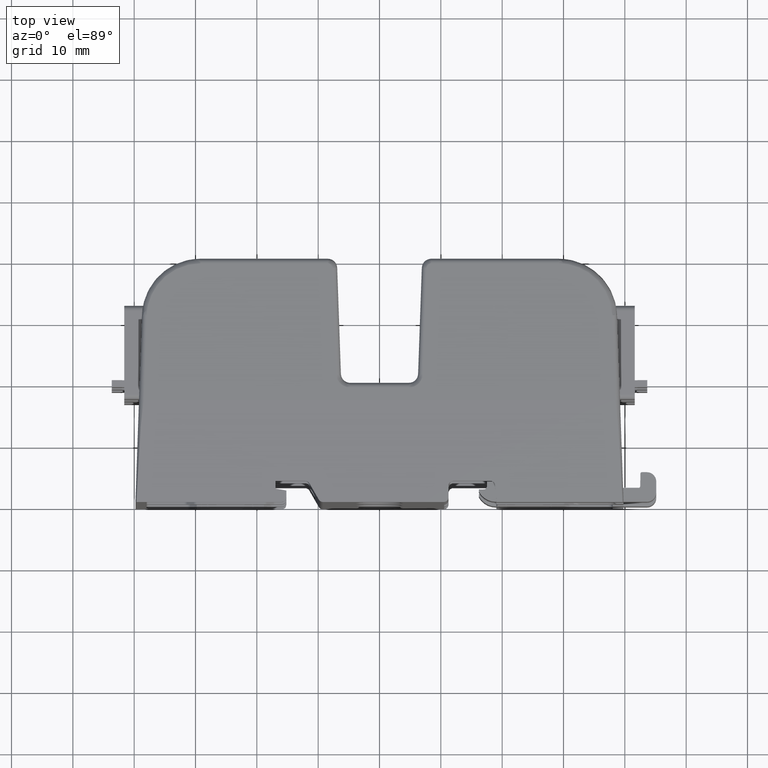
[diagram: clean part render]
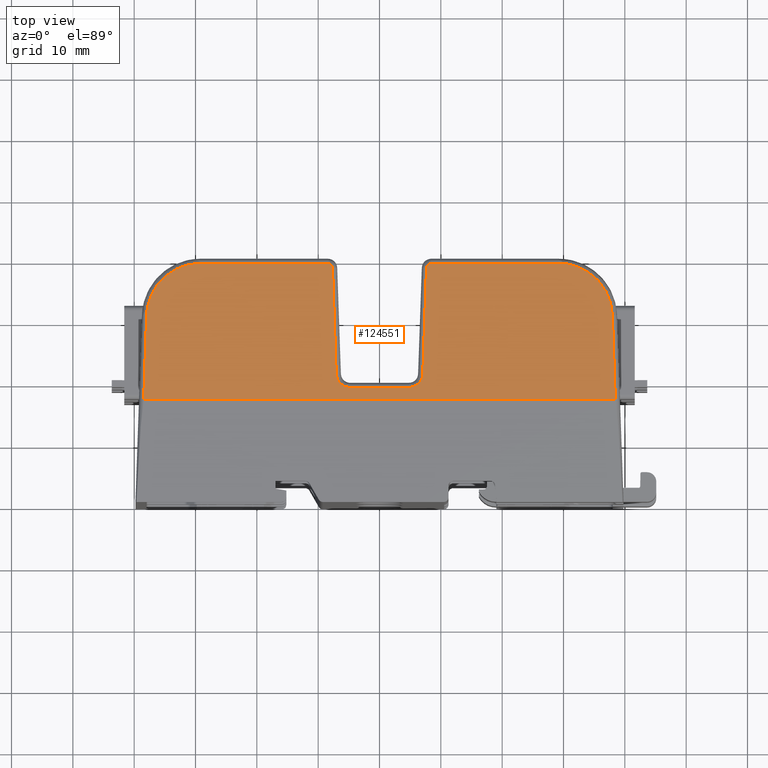
[diagram: same view with one face highlighted and labeled with its STEP entity id]
A machine part, top view. The second image highlights one B-rep face of the part: STEP entity #124551.
In plain terms, the highlighted planar face has unit normal (0, -0.0175, -0.9998).
Its self-contained STEP definition (entity closure, byte-faithful):
#179 = VECTOR ( 'NONE', #86601, 39.37007874015748900 ) ;
#1579 = CARTESIAN_POINT ( 'NONE',  ( -1.346367105068339900, 1.532523572193156700, 0.4687176792011885600 ) ) ;
#1840 = CARTESIAN_POINT ( 'NONE',  ( 0.3017914549627716500, 1.503570557094188000, 0.4692230559596084500 ) ) ;
#3571 = CARTESIAN_POINT ( 'NONE',  ( 1.494610302822825700, 1.199563898555475500, 0.4745295119230104100 ) ) ;
#3598 = CARTESIAN_POINT ( 'NONE',  ( 0.3017914549627716500, 1.503570557094188000, 0.4692230559596084500 ) ) ;
#3658 = LINE ( 'NONE', #97520, #179 ) ;
#4620 = CARTESIAN_POINT ( 'NONE',  ( 0.1880586735115753500, 0.7355235721931184800, 0.4826293659489739900 ) ) ;
#6291 = VERTEX_POINT ( 'NONE', #75295 ) ;
#8776 = LINE ( 'NONE', #106040, #122118 ) ;
#10596 = CARTESIAN_POINT ( 'NONE',  ( 1.494610302822825700, 1.199563898555475500, 0.4745295119230104100 ) ) ;
#11316 = EDGE_CURVE ( 'NONE', #61268, #54311, #63619, .T. ) ;
#11508 = AXIS2_PLACEMENT_3D ( 'NONE', #45219, #124401, #56595 ) ;
#12949 = ORIENTED_EDGE ( 'NONE', *, *, #123259, .T. ) ;
#12998 = ORIENTED_EDGE ( 'NONE', *, *, #100175, .T. ) ;
#13876 =( BOUNDED_CURVE ( )  B_SPLINE_CURVE ( 3, ( #90701, #35409, #69511, #1840 ),
 .UNSPECIFIED., .F., .F. ) 
 B_SPLINE_CURVE_WITH_KNOTS ( ( 4, 4 ),
 ( 3.141592653590012900, 4.677482395345038000 ),
 .UNSPECIFIED. ) 
 CURVE ( )  GEOMETRIC_REPRESENTATION_ITEM ( )  RATIONAL_B_SPLINE_CURVE ( ( 1.000000000000000000, 0.8128932002257639500, 0.8128932002257639500, 1.000000000000000000 ) ) 
 REPRESENTATION_ITEM ( '' )  );
#14063 = CARTESIAN_POINT ( 'NONE',  ( -0.3317731797733445800, 1.532523572193113200, 0.4687176792011891700 ) ) ;
#14092 = VERTEX_POINT ( 'NONE', #4620 ) ;
#18337 = DIRECTION ( 'NONE',  ( -0.03489418781261441300, 0.9992388003036509800, -0.01744177813808881600 ) ) ;
#18682 = CARTESIAN_POINT ( 'NONE',  ( -1.566499999999999800, 0.6570000000000000300, 0.4840000000000000400 ) ) ;
#21072 = LINE ( 'NONE', #122294, #107880 ) ;
#21789 = VERTEX_POINT ( 'NONE', #24666 ) ;
#24666 = CARTESIAN_POINT ( 'NONE',  ( 1.149820467501237600, 1.532523572193113200, 0.4687176792011891700 ) ) ;
#24686 = EDGE_CURVE ( 'NONE', #123220, #53047, #21072, .T. ) ;
#28528 = LINE ( 'NONE', #18682, #138266 ) ;
#29512 = CARTESIAN_POINT ( 'NONE',  ( -1.509834696245875700, 0.7635943124142426900, 0.4821393893558312800 ) ) ;
#30074 = DIRECTION ( 'NONE',  ( 1.000000000000000000, 0.0000000000000000000, 0.0000000000000000000 ) ) ;
#31496 = VERTEX_POINT ( 'NONE', #3571 ) ;
#32836 = CARTESIAN_POINT ( 'NONE',  ( -0.1880586735115753500, 0.7355235721931184800, 0.4826293659489739900 ) ) ;
#33281 = CARTESIAN_POINT ( 'NONE',  ( 1.346367105068340100, 1.532523572193156700, 0.4687176792011883400 ) ) ;
#35409 = CARTESIAN_POINT ( 'NONE',  ( 0.3146821678109840100, 1.532523572193113200, 0.4687176792011892300 ) ) ;
#35567 =( BOUNDED_CURVE ( )  B_SPLINE_CURVE ( 3, ( #92909, #117721, #140331, #72542 ),
 .UNSPECIFIED., .F., .F. ) 
 B_SPLINE_CURVE_WITH_KNOTS ( ( 4, 4 ),
 ( 1.605702911834779000, 3.141592653589793100 ),
 .UNSPECIFIED. ) 
 CURVE ( )  GEOMETRIC_REPRESENTATION_ITEM ( )  RATIONAL_B_SPLINE_CURVE ( ( 1.000000000000000000, 0.8128932002257665000, 0.8128932002257665000, 1.000000000000000000 ) ) 
 REPRESENTATION_ITEM ( '' )  );
#37399 = VERTEX_POINT ( 'NONE', #68287 ) ;
#39180 = EDGE_CURVE ( 'NONE', #145947, #31496, #53044, .T. ) ;
#42849 =( BOUNDED_CURVE ( )  B_SPLINE_CURVE ( 3, ( #138181, #59020, #81789, #14063 ),
 .UNSPECIFIED., .F., .F. ) 
 B_SPLINE_CURVE_WITH_KNOTS ( ( 4, 4 ),
 ( 1.605702911834557400, 3.141592653589575500 ),
 .UNSPECIFIED. ) 
 CURVE ( )  GEOMETRIC_REPRESENTATION_ITEM ( )  RATIONAL_B_SPLINE_CURVE ( ( 1.000000000000000000, 0.8128932002257656100, 0.8128932002257656100, 1.000000000000000000 ) ) 
 REPRESENTATION_ITEM ( '' )  );
#45219 = CARTESIAN_POINT ( 'NONE',  ( 1.543557054443922100, 0.6570000000000000300, 0.4840000000000000400 ) ) ;
#49710 = ORIENTED_EDGE ( 'NONE', *, *, #56158, .T. ) ;
#49965 = ORIENTED_EDGE ( 'NONE', *, *, #70586, .T. ) ;
#52241 = DIRECTION ( 'NONE',  ( -0.03489418781261441300, -0.9992388003036509800, 0.01744177813808881600 ) ) ;
#53044 = LINE ( 'NONE', #86114, #113387 ) ;
#53047 = VERTEX_POINT ( 'NONE', #128755 ) ;
#53424 = LINE ( 'NONE', #142136, #83538 ) ;
#54311 = VERTEX_POINT ( 'NONE', #114511 ) ;
#54425 = DIRECTION ( 'NONE',  ( -0.03489418781261068700, -0.9992388003036509800, 0.01744177813808881600 ) ) ;
#54978 = ORIENTED_EDGE ( 'NONE', *, *, #79245, .T. ) ;
#55602 = CARTESIAN_POINT ( 'NONE',  ( -0.2780038479432934700, 0.8223826174898936100, 0.4811132356737162800 ) ) ;
#55955 = CARTESIAN_POINT ( 'NONE',  ( -1.494610302822825500, 1.199563898555475500, 0.4745295119230104100 ) ) ;
#56091 = PLANE ( 'NONE',  #11508 ) ;
#56158 = EDGE_CURVE ( 'NONE', #66171, #6291, #3658, .T. ) ;
#56595 = DIRECTION ( 'NONE',  ( 0.0000000000000000000, 0.9998476951563912700, -0.01745240643727785300 ) ) ;
#58863 = CARTESIAN_POINT ( 'NONE',  ( -1.487750924093162300, 1.395990805221561000, 0.4711008675135060500 ) ) ;
#59020 = CARTESIAN_POINT ( 'NONE',  ( -0.3023879226783943200, 1.520651157673844400, 0.4689249129674776300 ) ) ;
#61268 = VERTEX_POINT ( 'NONE', #55955 ) ;
#61355 = ORIENTED_EDGE ( 'NONE', *, *, #99242, .T. ) ;
#62609 = ORIENTED_EDGE ( 'NONE', *, *, #39180, .T. ) ;
#63619 = LINE ( 'NONE', #29512, #90228 ) ;
#66171 = VERTEX_POINT ( 'NONE', #141403 ) ;
#66240 = ORIENTED_EDGE ( 'NONE', *, *, #81812, .T. ) ;
#68121 = VERTEX_POINT ( 'NONE', #72999 ) ;
#68287 = CARTESIAN_POINT ( 'NONE',  ( 0.3317731797733445800, 1.532523572193113200, 0.4687176792011891700 ) ) ;
#69511 = CARTESIAN_POINT ( 'NONE',  ( 0.3023879226783942600, 1.520651157673844800, 0.4689249129674777400 ) ) ;
#70257 = ORIENTED_EDGE ( 'NONE', *, *, #125047, .T. ) ;
#70586 = EDGE_CURVE ( 'NONE', #37399, #123220, #13876, .T. ) ;
#72542 = CARTESIAN_POINT ( 'NONE',  ( 0.1880586735115753500, 0.7355235721931184800, 0.4826293659489739900 ) ) ;
#72999 = CARTESIAN_POINT ( 'NONE',  ( -0.1880586735115753500, 0.7355235721931184800, 0.4826293659489739900 ) ) ;
#75295 = CARTESIAN_POINT ( 'NONE',  ( -0.3017914549627716000, 1.503570557094188000, 0.4692230559596084500 ) ) ;
#78299 = CARTESIAN_POINT ( 'NONE',  ( 1.487750924093162600, 1.395990805221560600, 0.4711008675135062200 ) ) ;
#79245 = EDGE_CURVE ( 'NONE', #91045, #61268, #126276, .T. ) ;
#81789 = CARTESIAN_POINT ( 'NONE',  ( -0.3146821678109842400, 1.532523572193113000, 0.4687176792011889000 ) ) ;
#81812 = EDGE_CURVE ( 'NONE', #14092, #68121, #53424, .T. ) ;
#81934 = EDGE_LOOP ( 'NONE', ( #61355, #62609, #70257, #137683, #49965, #140401, #138802, #66240, #12998, #49710, #141761, #12949, #54978, #130295 ) ) ;
#83538 = VECTOR ( 'NONE', #85746, 39.37007874015748100 ) ;
#85746 = DIRECTION ( 'NONE',  ( -1.000000000000000000, 0.0000000000000000000, 0.0000000000000000000 ) ) ;
#86114 = CARTESIAN_POINT ( 'NONE',  ( 1.513593579792509700, 0.6559539711118668200, 0.4840182585021591300 ) ) ;
#86601 = DIRECTION ( 'NONE',  ( -0.03489418781261068700, 0.9992388003036509800, -0.01744177813808881600 ) ) ;
#90228 = VECTOR ( 'NONE', #52241, 39.37007874015748900 ) ;
#90701 = CARTESIAN_POINT ( 'NONE',  ( 0.3317731797733445800, 1.532523572193113200, 0.4687176792011891700 ) ) ;
#91045 = VERTEX_POINT ( 'NONE', #140881 ) ;
#92909 = CARTESIAN_POINT ( 'NONE',  ( 0.2780038479432939700, 0.8223826174898937200, 0.4811132356737162800 ) ) ;
#97520 = CARTESIAN_POINT ( 'NONE',  ( -0.2700176512300886400, 0.5936878656433487400, 0.4851051174159390400 ) ) ;
#97884 = VECTOR ( 'NONE', #110739, 39.37007874015748100 ) ;
#99242 = EDGE_CURVE ( 'NONE', #54311, #145947, #28528, .T. ) ;
#99296 = CARTESIAN_POINT ( 'NONE',  ( 1.543557054443922100, 1.532523572193113200, 0.4687176792011891700 ) ) ;
#100175 = EDGE_CURVE ( 'NONE', #68121, #66171, #138876, .T. ) ;
#101485 = LINE ( 'NONE', #99296, #97884 ) ;
#106040 = CARTESIAN_POINT ( 'NONE',  ( 1.543557054443922100, 1.532523572193113200, 0.4687176792011891700 ) ) ;
#106595 = CARTESIAN_POINT ( 'NONE',  ( 1.513557051658825900, 0.6570000000000000300, 0.4840000000000000400 ) ) ;
#106987 = VERTEX_POINT ( 'NONE', #139055 ) ;
#107880 = VECTOR ( 'NONE', #54425, 39.37007874015748900 ) ;
#110739 = DIRECTION ( 'NONE',  ( -1.000000000000000000, 0.0000000000000000000, 0.0000000000000000000 ) ) ;
#112594 = CARTESIAN_POINT ( 'NONE',  ( 1.149820467501237600, 1.532523572193113200, 0.4687176792011891700 ) ) ;
#113387 = VECTOR ( 'NONE', #18337, 39.37007874015748900 ) ;
#114511 = CARTESIAN_POINT ( 'NONE',  ( -1.513557051658824800, 0.6570000000000000300, 0.4840000000000000400 ) ) ;
#115395 = CARTESIAN_POINT ( 'NONE',  ( -1.149820467501237300, 1.532523572193113200, 0.4687176792011891700 ) ) ;
#117453 = DIRECTION ( 'NONE',  ( -1.000000000000000000, 0.0000000000000000000, 0.0000000000000000000 ) ) ;
#117721 = CARTESIAN_POINT ( 'NONE',  ( 0.2762144447964257600, 0.7711408157509240800, 0.4820076646501086400 ) ) ;
#122118 = VECTOR ( 'NONE', #117453, 39.37007874015748100 ) ;
#122241 = EDGE_CURVE ( 'NONE', #21789, #37399, #101485, .T. ) ;
#122294 = CARTESIAN_POINT ( 'NONE',  ( 0.2737765347767217000, 0.7013282069457129600, 0.4832262482696113600 ) ) ;
#122952 = CARTESIAN_POINT ( 'NONE',  ( -0.2393317093986563300, 0.7355235721931185900, 0.4826293659489741000 ) ) ;
#123220 = VERTEX_POINT ( 'NONE', #3598 ) ;
#123259 = EDGE_CURVE ( 'NONE', #106987, #91045, #8776, .T. ) ;
#123440 = CARTESIAN_POINT ( 'NONE',  ( -0.2762144447964256500, 0.7711408157509237500, 0.4820076646501086400 ) ) ;
#124401 = DIRECTION ( 'NONE',  ( 0.0000000000000000000, -0.01745240643727785600, -0.9998476951563913800 ) ) ;
#124551 = ADVANCED_FACE ( 'NONE', ( #124673 ), #56091, .F. ) ;
#124673 = FACE_OUTER_BOUND ( 'NONE', #81934, .T. ) ;
#125047 = EDGE_CURVE ( 'NONE', #31496, #21789, #142197, .T. ) ;
#126276 =( BOUNDED_CURVE ( )  B_SPLINE_CURVE ( 3, ( #115395, #1579, #58863, #138008 ),
 .UNSPECIFIED., .F., .F. ) 
 B_SPLINE_CURVE_WITH_KNOTS ( ( 4, 4 ),
 ( 0.0000000000000000000, 1.535889741755230900 ),
 .UNSPECIFIED. ) 
 CURVE ( )  GEOMETRIC_REPRESENTATION_ITEM ( )  RATIONAL_B_SPLINE_CURVE ( ( 1.000000000000000000, 0.8128932002257163200, 0.8128932002257163200, 1.000000000000000000 ) ) 
 REPRESENTATION_ITEM ( '' )  );
#128755 = CARTESIAN_POINT ( 'NONE',  ( 0.2780038479432939700, 0.8223826174898937200, 0.4811132356737162800 ) ) ;
#130295 = ORIENTED_EDGE ( 'NONE', *, *, #11316, .T. ) ;
#137683 = ORIENTED_EDGE ( 'NONE', *, *, #122241, .T. ) ;
#138008 = CARTESIAN_POINT ( 'NONE',  ( -1.494610302822825500, 1.199563898555475500, 0.4745295119230104100 ) ) ;
#138181 = CARTESIAN_POINT ( 'NONE',  ( -0.3017914549627716000, 1.503570557094188000, 0.4692230559596084500 ) ) ;
#138266 = VECTOR ( 'NONE', #30074, 39.37007874015748100 ) ;
#138802 = ORIENTED_EDGE ( 'NONE', *, *, #142937, .T. ) ;
#138876 =( BOUNDED_CURVE ( )  B_SPLINE_CURVE ( 3, ( #32836, #122952, #123440, #55602 ),
 .UNSPECIFIED., .F., .F. ) 
 B_SPLINE_CURVE_WITH_KNOTS ( ( 4, 4 ),
 ( 3.141592653589793100, 4.677482395344805300 ),
 .UNSPECIFIED. ) 
 CURVE ( )  GEOMETRIC_REPRESENTATION_ITEM ( )  RATIONAL_B_SPLINE_CURVE ( ( 1.000000000000000000, 0.8128932002257669400, 0.8128932002257669400, 1.000000000000000000 ) ) 
 REPRESENTATION_ITEM ( '' )  );
#139055 = CARTESIAN_POINT ( 'NONE',  ( -0.3317731797733445800, 1.532523572193113200, 0.4687176792011891700 ) ) ;
#140331 = CARTESIAN_POINT ( 'NONE',  ( 0.2393317093986564700, 0.7355235721931185900, 0.4826293659489741000 ) ) ;
#140401 = ORIENTED_EDGE ( 'NONE', *, *, #24686, .T. ) ;
#140881 = CARTESIAN_POINT ( 'NONE',  ( -1.149820467501237300, 1.532523572193113200, 0.4687176792011891700 ) ) ;
#141403 = CARTESIAN_POINT ( 'NONE',  ( -0.2780038479432934700, 0.8223826174898936100, 0.4811132356737162800 ) ) ;
#141761 = ORIENTED_EDGE ( 'NONE', *, *, #141917, .T. ) ;
#141917 = EDGE_CURVE ( 'NONE', #6291, #106987, #42849, .T. ) ;
#142136 = CARTESIAN_POINT ( 'NONE',  ( 1.543557054443922100, 0.7355235721931184800, 0.4826293659489739900 ) ) ;
#142197 =( BOUNDED_CURVE ( )  B_SPLINE_CURVE ( 3, ( #10596, #78299, #33281, #112594 ),
 .UNSPECIFIED., .F., .F. ) 
 B_SPLINE_CURVE_WITH_KNOTS ( ( 4, 4 ),
 ( 4.747295565424355600, 6.283185307179586200 ),
 .UNSPECIFIED. ) 
 CURVE ( )  GEOMETRIC_REPRESENTATION_ITEM ( )  RATIONAL_B_SPLINE_CURVE ( ( 1.000000000000000000, 0.8128932002257164300, 0.8128932002257164300, 1.000000000000000000 ) ) 
 REPRESENTATION_ITEM ( '' )  );
#142937 = EDGE_CURVE ( 'NONE', #53047, #14092, #35567, .T. ) ;
#145947 = VERTEX_POINT ( 'NONE', #106595 ) ;